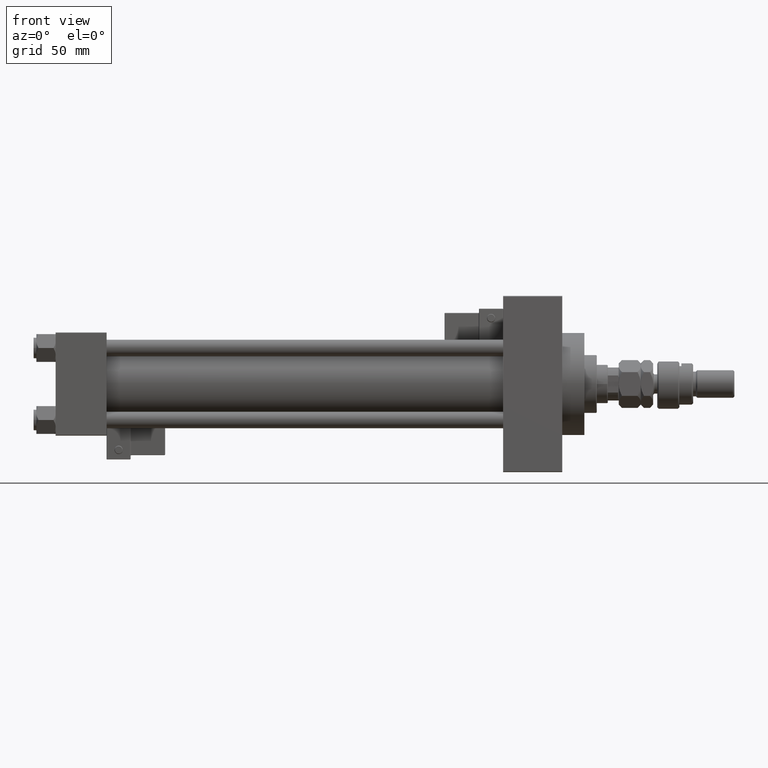
[diagram: clean part render]
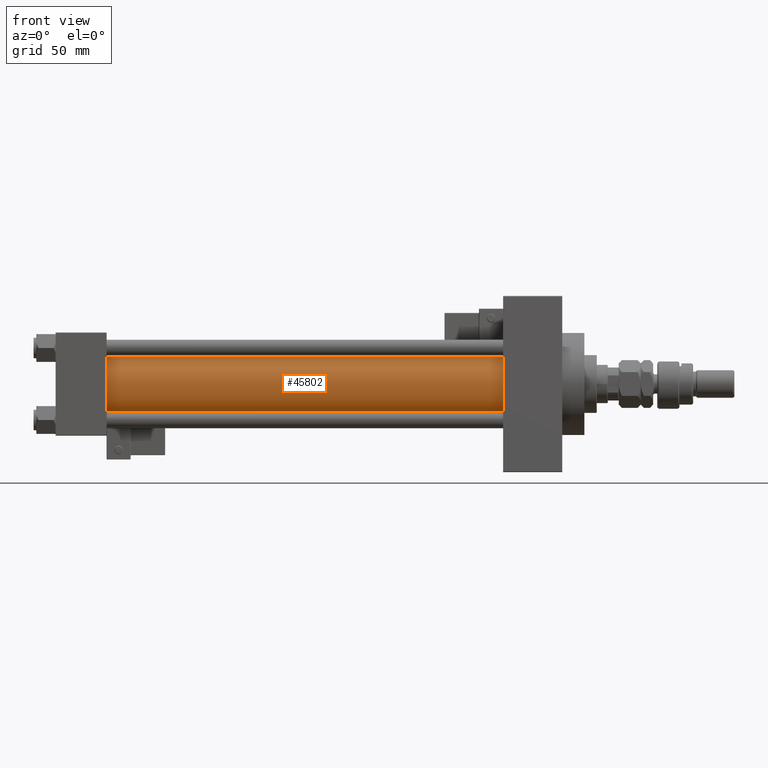
[diagram: same view with one face highlighted and labeled with its STEP entity id]
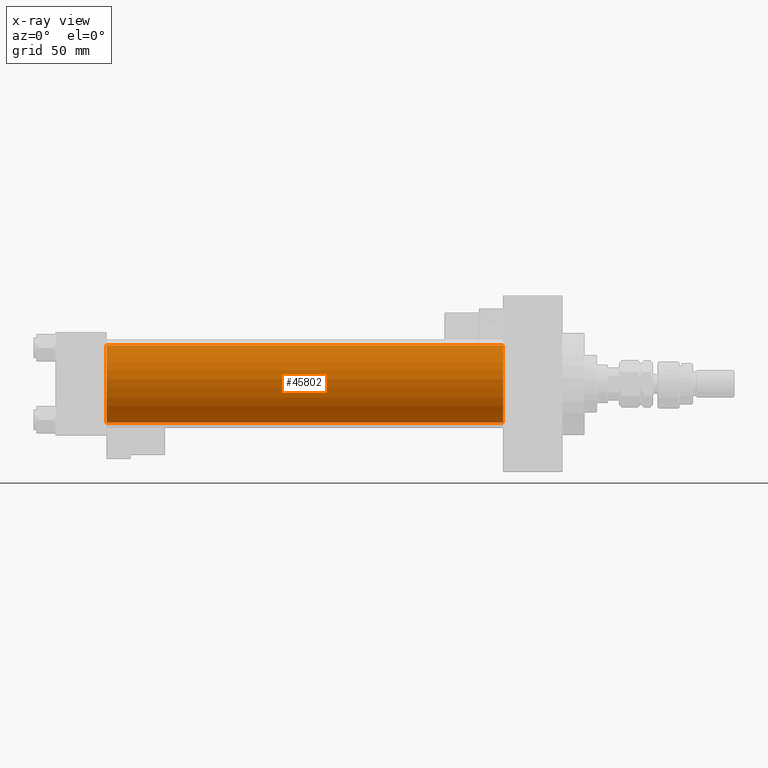
[diagram: x-ray of the same camera — body ghosted, the highlighted face saturated]
A machine part, front view. The second image highlights one B-rep face of the part: STEP entity #45802.
The next image is the same camera in x-ray: the body ghosted, the highlighted face saturated — about 0% of this face is hidden behind the body in this view.
In plain terms, the highlighted cylindrical surface (partial cylindrical patch) has radius 28 mm, axis along (-1, -0, -0).
Its self-contained STEP definition (entity closure, byte-faithful):
#243 = AXIS2_PLACEMENT_3D ( 'NONE', #20619, #25568, #4387 ) ;
#818 = FACE_OUTER_BOUND ( 'NONE', #9928, .T. ) ;
#3463 = VERTEX_POINT ( 'NONE', #31775 ) ;
#3982 = VERTEX_POINT ( 'NONE', #10222 ) ;
#4387 = DIRECTION ( 'NONE',  ( 0.000000000000000000, 0.000000000000000000, 1.000000000000000000 ) ) ;
#4917 = CARTESIAN_POINT ( 'NONE',  ( 324.9999999999999432, -2.602085213965210642E-15, 28.00000000000000000 ) ) ;
#8743 = CARTESIAN_POINT ( 'NONE',  ( 324.9999999999999432, 8.269258236473784371E-16, -28.00000000000000000 ) ) ;
#9928 = EDGE_LOOP ( 'NONE', ( #23659, #50047, #23103, #50252 ) ) ;
#10222 = CARTESIAN_POINT ( 'NONE',  ( 36.99999999999997868, 8.269258236473784371E-16, -28.00000000000000000 ) ) ;
#10519 = VERTEX_POINT ( 'NONE', #53323 ) ;
#12453 = AXIS2_PLACEMENT_3D ( 'NONE', #20816, #37580, #29322 ) ;
#12752 = CIRCLE ( 'NONE', #44426, 28.00000000000000000 ) ;
#16395 = DIRECTION ( 'NONE',  ( 0.000000000000000000, 0.000000000000000000, 1.000000000000000000 ) ) ;
#20619 = CARTESIAN_POINT ( 'NONE',  ( 324.9999999999999432, -2.602085213965210642E-15, 0.000000000000000000 ) ) ;
#20816 = CARTESIAN_POINT ( 'NONE',  ( 324.9999999999999432, -2.602085213965210642E-15, 0.000000000000000000 ) ) ;
#20873 = LINE ( 'NONE', #4917, #40547 ) ;
#23103 = ORIENTED_EDGE ( 'NONE', *, *, #29464, .T. ) ;
#23659 = ORIENTED_EDGE ( 'NONE', *, *, #54286, .F. ) ;
#25568 = DIRECTION ( 'NONE',  ( -1.000000000000000000, -0.000000000000000000, -0.000000000000000000 ) ) ;
#29135 = CIRCLE ( 'NONE', #12453, 28.00000000000000000 ) ;
#29139 = CYLINDRICAL_SURFACE ( 'NONE', #243, 28.00000000000000000 ) ;
#29322 = DIRECTION ( 'NONE',  ( 0.000000000000000000, 0.000000000000000000, -1.000000000000000000 ) ) ;
#29464 = EDGE_CURVE ( 'NONE', #10519, #3463, #20873, .T. ) ;
#30589 = EDGE_CURVE ( 'NONE', #10519, #42931, #29135, .T. ) ;
#31775 = CARTESIAN_POINT ( 'NONE',  ( 36.99999999999997868, -2.602085213965210642E-15, 28.00000000000000000 ) ) ;
#33755 = DIRECTION ( 'NONE',  ( -1.000000000000000000, -0.000000000000000000, -0.000000000000000000 ) ) ;
#33781 = DIRECTION ( 'NONE',  ( -1.000000000000000000, -0.000000000000000000, -0.000000000000000000 ) ) ;
#35622 = VECTOR ( 'NONE', #33755, 1000.000000000000000 ) ;
#37580 = DIRECTION ( 'NONE',  ( 1.000000000000000000, 0.000000000000000000, 0.000000000000000000 ) ) ;
#40547 = VECTOR ( 'NONE', #33781, 1000.000000000000000 ) ;
#42931 = VERTEX_POINT ( 'NONE', #43474 ) ;
#43474 = CARTESIAN_POINT ( 'NONE',  ( 324.9999999999999432, 8.269258236473784371E-16, -28.00000000000000000 ) ) ;
#44426 = AXIS2_PLACEMENT_3D ( 'NONE', #50189, #49666, #16395 ) ;
#45802 = ADVANCED_FACE ( 'NONE', ( #818 ), #29139, .T. ) ;
#49666 = DIRECTION ( 'NONE',  ( 1.000000000000000000, -0.000000000000000000, 0.000000000000000000 ) ) ;
#50047 = ORIENTED_EDGE ( 'NONE', *, *, #30589, .F. ) ;
#50189 = CARTESIAN_POINT ( 'NONE',  ( 36.99999999999997868, -2.602085213965210642E-15, 0.000000000000000000 ) ) ;
#50252 = ORIENTED_EDGE ( 'NONE', *, *, #51911, .T. ) ;
#51911 = EDGE_CURVE ( 'NONE', #3463, #3982, #12752, .T. ) ;
#53323 = CARTESIAN_POINT ( 'NONE',  ( 324.9999999999999432, -2.602085213965210642E-15, 28.00000000000000000 ) ) ;
#54087 = LINE ( 'NONE', #8743, #35622 ) ;
#54286 = EDGE_CURVE ( 'NONE', #42931, #3982, #54087, .T. ) ;